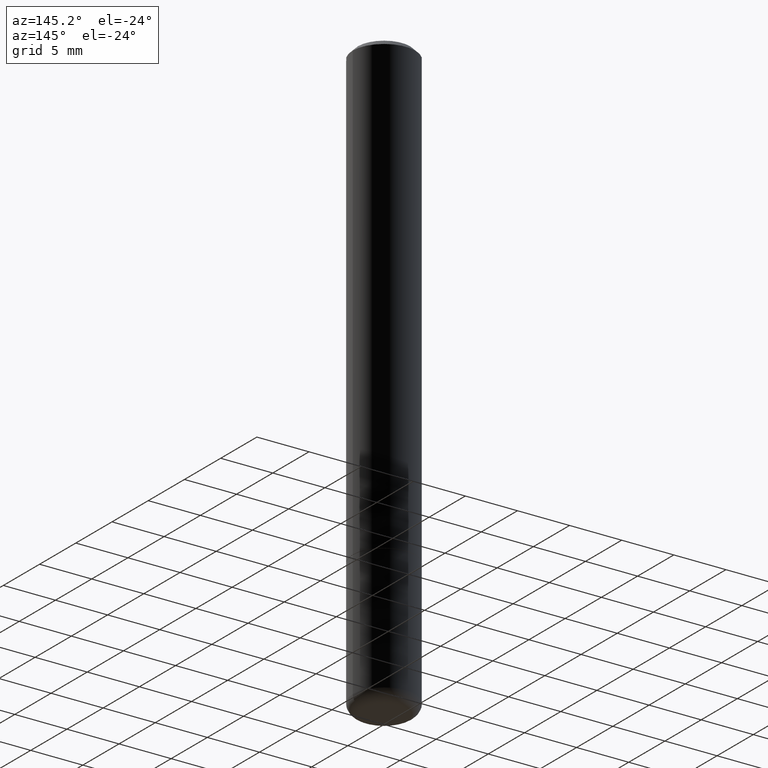
[diagram: clean part render]
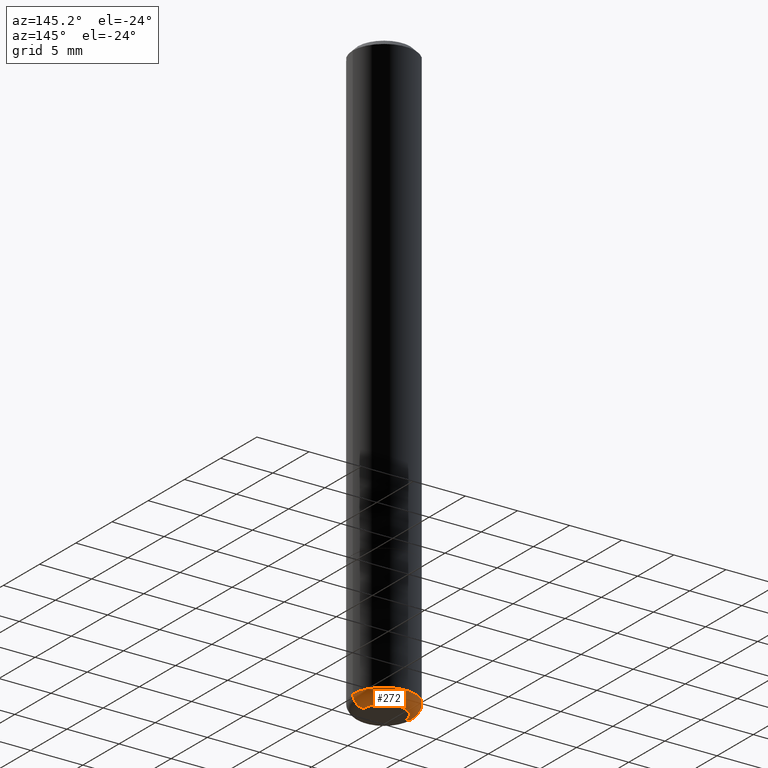
[diagram: same view with one face highlighted and labeled with its STEP entity id]
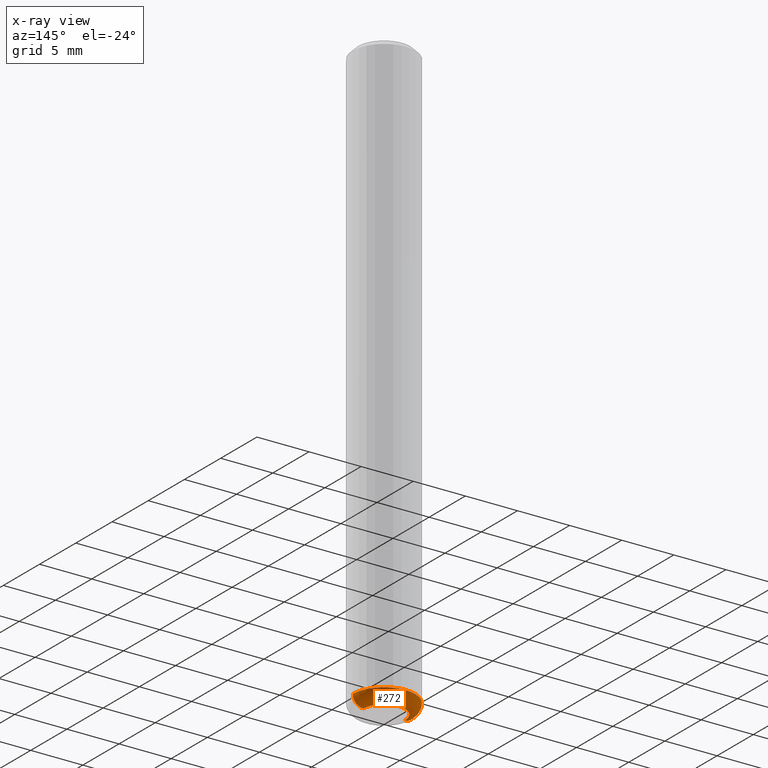
[diagram: x-ray of the same camera — body ghosted, the highlighted face saturated]
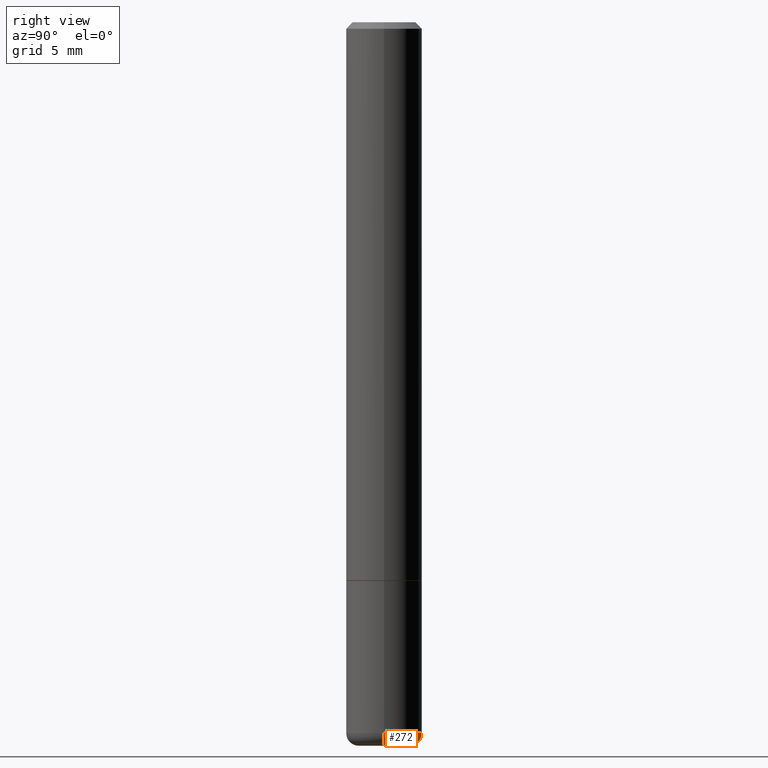
[diagram: same view with one face highlighted and labeled with its STEP entity id]
A machine part, auxiliary view. The second image highlights one B-rep face of the part: STEP entity #272.
The next image is the same camera in x-ray: the body ghosted, the highlighted face saturated — about 0% of this face is hidden behind the body in this view.
A second angle (right view) of the same face is appended — the face is thin or edge-on in the first view.
In plain terms, the highlighted toroidal blend (fillet) surface has major radius 1.999 mm and minor (blend) radius 1.0008 mm.
Its self-contained STEP definition (entity closure, byte-faithful):
#37 = DIRECTION ( 'NONE',  ( 1.000000000000000000, -6.982962677686266711E-15, 0.000000000000000000 ) ) ;
#47 = CARTESIAN_POINT ( 'NONE',  ( -0.1180999999999998995, -6.858517936814806506E-15, -2.204700000000000326 ) ) ;
#59 = AXIS2_PLACEMENT_3D ( 'NONE', #227, #71, #196 ) ;
#63 = EDGE_CURVE ( 'NONE', #370, #336, #202, .T. ) ;
#71 = DIRECTION ( 'NONE',  ( -2.445468806185136597E-29, 3.491481338843145583E-15, 1.000000000000000000 ) ) ;
#78 = CIRCLE ( 'NONE', #59, 0.07870000000000000606 ) ;
#87 = ORIENTED_EDGE ( 'NONE', *, *, #177, .F. ) ;
#90 = CARTESIAN_POINT ( 'NONE',  ( 0.1180999999999998995, -8.522356799982231388E-15, -2.204700000000000326 ) ) ;
#91 = CARTESIAN_POINT ( 'NONE',  ( 5.391525076996371277E-29, -7.697668907747483125E-15, -2.204700000000000326 ) ) ;
#100 = CIRCLE ( 'NONE', #214, 0.03939999999999978936 ) ;
#102 = FACE_OUTER_BOUND ( 'NONE', #215, .T. ) ;
#117 = DIRECTION ( 'NONE',  ( -2.445468806185136597E-29, 3.491481338843145583E-15, 1.000000000000000000 ) ) ;
#119 = DIRECTION ( 'NONE',  ( -1.000000000000000000, 7.105427357600989237E-15, 0.000000000000000000 ) ) ;
#133 = DIRECTION ( 'NONE',  ( -6.982962677686266711E-15, -1.000000000000000000, 3.491481338843145583E-15 ) ) ;
#155 = DIRECTION ( 'NONE',  ( 7.105427357601001859E-15, 1.000000000000000000, -3.491481338843145583E-15 ) ) ;
#156 = AXIS2_PLACEMENT_3D ( 'NONE', #292, #133, #37 ) ;
#177 = EDGE_CURVE ( 'NONE', #282, #370, #290, .T. ) ;
#188 = DIRECTION ( 'NONE',  ( -2.445468806185136597E-29, 3.491481338843145583E-15, 1.000000000000000000 ) ) ;
#191 = CARTESIAN_POINT ( 'NONE',  ( -0.07870000000000000606, -7.067277038134755422E-15, -2.244099999999999540 ) ) ;
#196 = DIRECTION ( 'NONE',  ( 1.000000000000000000, -6.982962677686269077E-15, 0.000000000000000000 ) ) ;
#202 = CIRCLE ( 'NONE', #255, 0.1180999999999999966 ) ;
#213 = EDGE_CURVE ( 'NONE', #219, #336, #100, .T. ) ;
#214 = AXIS2_PLACEMENT_3D ( 'NONE', #344, #155, #119 ) ;
#215 = EDGE_LOOP ( 'NONE', ( #324, #226, #397, #87 ) ) ;
#219 = VERTEX_POINT ( 'NONE', #191 ) ;
#226 = ORIENTED_EDGE ( 'NONE', *, *, #213, .T. ) ;
#227 = CARTESIAN_POINT ( 'NONE',  ( 5.487876547960064752E-29, -7.835233272497900762E-15, -2.244099999999999540 ) ) ;
#233 = DIRECTION ( 'NONE',  ( 1.000000000000000000, -6.982962677686268288E-15, 4.883557194083112901E-29 ) ) ;
#251 = DIRECTION ( 'NONE',  ( 1.000000000000000000, -6.982962677686265133E-15, 0.000000000000000000 ) ) ;
#255 = AXIS2_PLACEMENT_3D ( 'NONE', #91, #117, #251 ) ;
#272 = ADVANCED_FACE ( 'NONE', ( #102 ), #375, .T. ) ;
#282 = VERTEX_POINT ( 'NONE', #291 ) ;
#290 = CIRCLE ( 'NONE', #156, 0.03939999999999978936 ) ;
#291 = CARTESIAN_POINT ( 'NONE',  ( 0.07870000000000000606, -8.384792435231810596E-15, -2.244099999999999540 ) ) ;
#292 = CARTESIAN_POINT ( 'NONE',  ( 0.07870000000000000606, -8.247228070481392959E-15, -2.204700000000000326 ) ) ;
#324 = ORIENTED_EDGE ( 'NONE', *, *, #408, .T. ) ;
#336 = VERTEX_POINT ( 'NONE', #47 ) ;
#344 = CARTESIAN_POINT ( 'NONE',  ( -0.07870000000000000606, -7.138471774704284335E-15, -2.204700000000000326 ) ) ;
#366 = CARTESIAN_POINT ( 'NONE',  ( 5.391525076996371277E-29, -7.697668907747483125E-15, -2.204700000000000326 ) ) ;
#370 = VERTEX_POINT ( 'NONE', #90 ) ;
#375 = TOROIDAL_SURFACE ( 'NONE', #376, 0.07870000000000000606, 0.03939999999999978936 ) ;
#376 = AXIS2_PLACEMENT_3D ( 'NONE', #366, #188, #233 ) ;
#397 = ORIENTED_EDGE ( 'NONE', *, *, #63, .F. ) ;
#408 = EDGE_CURVE ( 'NONE', #282, #219, #78, .T. ) ;